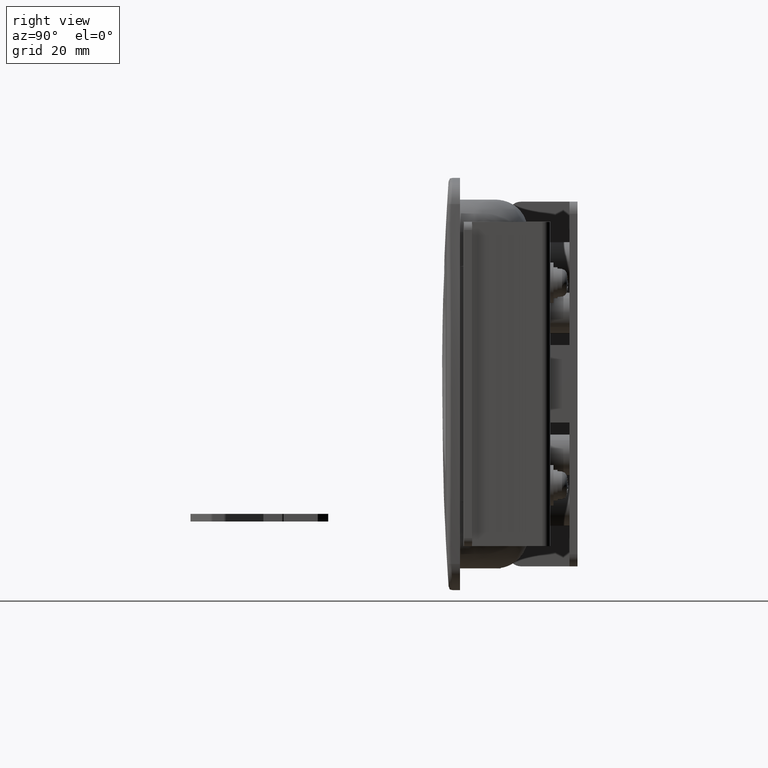
[diagram: clean part render]
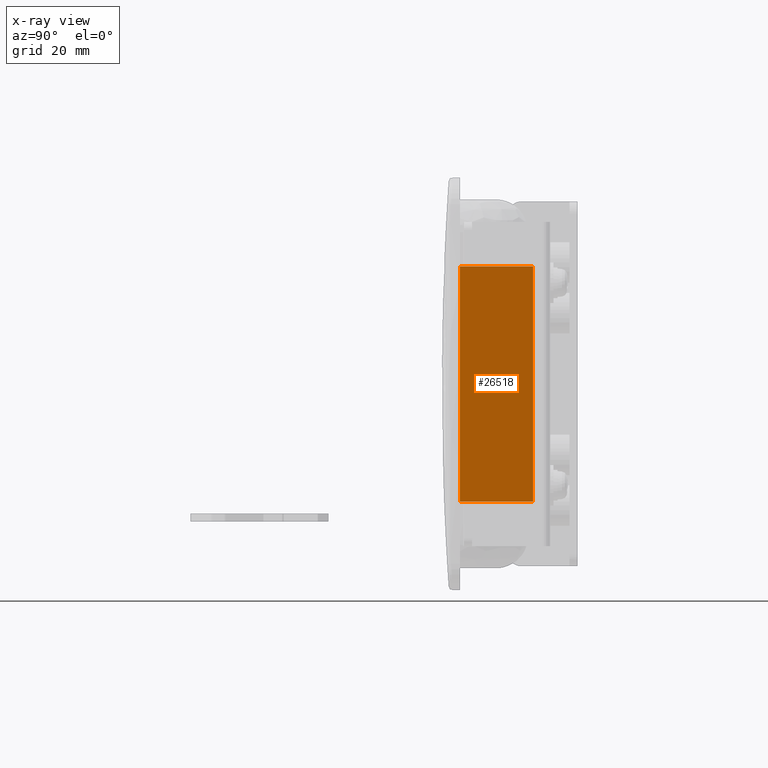
[diagram: x-ray — body ghosted, one internal face saturated and labeled with its STEP entity id]
A machine part, right view, then the same camera in x-ray: the body is ghosted and one INTERNAL B-rep face — a face not visible from any outside direction — is saturated and labeled: STEP entity #26518.
In plain terms, the highlighted face is a freeform B-spline surface patch.
Its self-contained STEP definition (entity closure, byte-faithful):
#24602=CARTESIAN_POINT('',(35.000999999999998,-11.0,-29.0));
#24603=VERTEX_POINT('',#24602);
#24659=CARTESIAN_POINT('',(35.000999999999998,-29.0,-29.0));
#24660=VERTEX_POINT('',#24659);
#24698=CARTESIAN_POINT('',(35.000999999999998,-29.0,-29.0));
#24699=CARTESIAN_POINT('',(35.000999999999998,-11.0,-29.0));
#24700=QUASI_UNIFORM_CURVE('',1,(#24698,#24699),.UNSPECIFIED.,.F.,.U.);
#24701=EDGE_CURVE('',#24660,#24603,#24700,.T.);
#24806=CARTESIAN_POINT('',(35.000999999999998,-11.0,29.0));
#24807=VERTEX_POINT('',#24806);
#24859=CARTESIAN_POINT('',(35.000999999999998,-29.0,29.0));
#24860=VERTEX_POINT('',#24859);
#24892=CARTESIAN_POINT('',(35.000999999999998,-11.0,29.0));
#24893=CARTESIAN_POINT('',(35.000999999999998,-29.0,29.0));
#24894=QUASI_UNIFORM_CURVE('',1,(#24892,#24893),.UNSPECIFIED.,.F.,.U.);
#24895=EDGE_CURVE('',#24807,#24860,#24894,.T.);
#26494=CARTESIAN_POINT('',(35.000999999999998,-11.0,-29.0));
#26495=CARTESIAN_POINT('',(35.000999999999998,-11.0,29.0));
#26496=QUASI_UNIFORM_CURVE('',1,(#26494,#26495),.UNSPECIFIED.,.F.,.U.);
#26497=EDGE_CURVE('',#24603,#24807,#26496,.T.);
#26503=CARTESIAN_POINT('',(35.000999999999998,-29.899099965112509,31.897099887584751));
#26504=CARTESIAN_POINT('',(35.000999999999998,-29.899099965112509,-31.897101443265981));
#26505=CARTESIAN_POINT('',(35.000999999999998,-10.100899552089871,31.897099887584751));
#26506=CARTESIAN_POINT('',(35.000999999999998,-10.100899552089871,-31.897101443265981));
#26507=B_SPLINE_SURFACE_WITH_KNOTS('',1,1,((#26503,#26505),(#26504,#26506)),.UNSPECIFIED.,.F.,.F.,.U.,(2,2),(2,2),(0.0,63.794201330850733),(0.0,19.798200413022641),.UNSPECIFIED.);
#26508=ORIENTED_EDGE('',*,*,#26497,.T.);
#26509=ORIENTED_EDGE('',*,*,#24895,.T.);
#26510=CARTESIAN_POINT('',(35.000999999999998,-29.0,-29.0));
#26511=CARTESIAN_POINT('',(35.000999999999998,-29.0,29.0));
#26512=QUASI_UNIFORM_CURVE('',1,(#26510,#26511),.UNSPECIFIED.,.F.,.U.);
#26513=EDGE_CURVE('',#24660,#24860,#26512,.T.);
#26514=ORIENTED_EDGE('',*,*,#26513,.F.);
#26515=ORIENTED_EDGE('',*,*,#24701,.T.);
#26516=EDGE_LOOP('',(#26508,#26509,#26514,#26515));
#26517=FACE_OUTER_BOUND('',#26516,.T.);
#26518=ADVANCED_FACE('',(#26517),#26507,.T.);